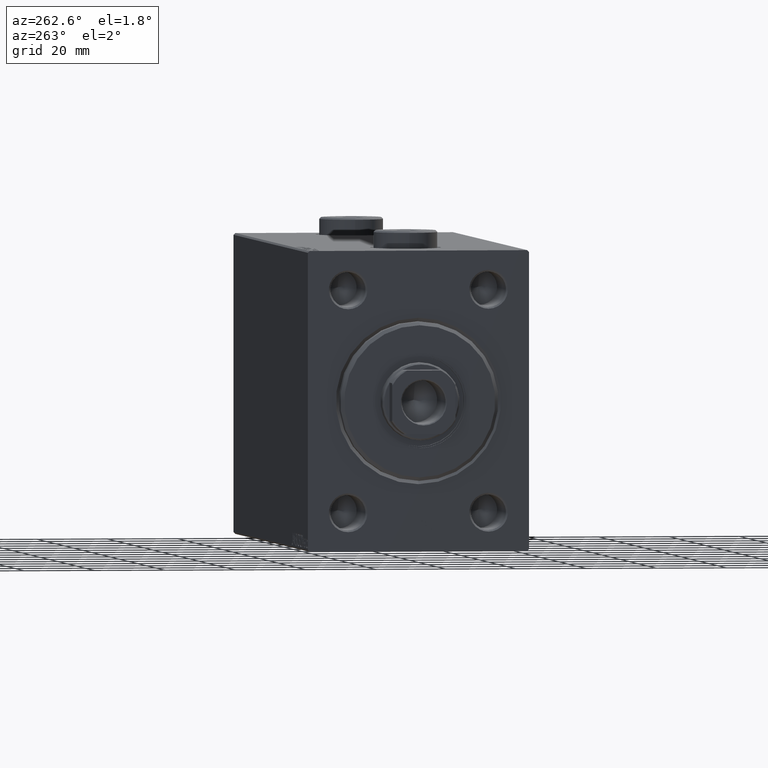
[diagram: clean part render]
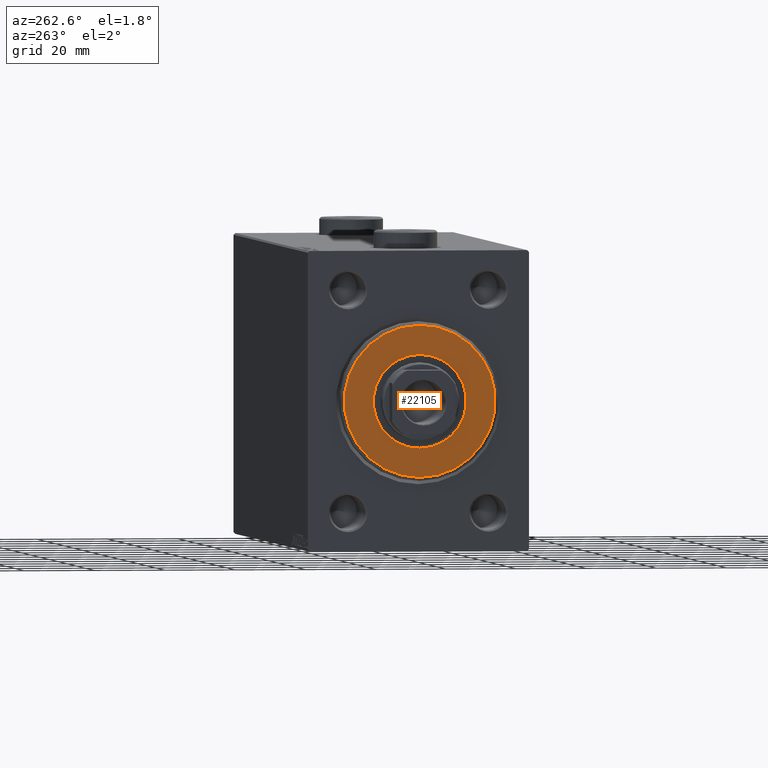
[diagram: same view with one face highlighted and labeled with its STEP entity id]
A machine part, auxiliary view. The second image highlights one B-rep face of the part: STEP entity #22105.
In plain terms, the highlighted planar face has unit normal (-1, 0, 0).
Its self-contained STEP definition (entity closure, byte-faithful):
#352 = DIRECTION ( 'NONE',  ( 1.000000000000000000, -0.000000000000000000, 0.000000000000000000 ) ) ;
#2660 = CARTESIAN_POINT ( 'NONE',  ( 3.000000000000000000, 0.000000000000000000, 0.000000000000000000 ) ) ;
#3381 = CARTESIAN_POINT ( 'NONE',  ( 3.000000000000000000, 0.000000000000000000, 21.50000000000000355 ) ) ;
#4695 = ORIENTED_EDGE ( 'NONE', *, *, #45482, .T. ) ;
#5608 = VERTEX_POINT ( 'NONE', #3381 ) ;
#8035 = CARTESIAN_POINT ( 'NONE',  ( 3.000000000000000000, 0.000000000000000000, 0.000000000000000000 ) ) ;
#8055 = CARTESIAN_POINT ( 'NONE',  ( 3.000000000000000000, 1.622657008870243277E-15, 13.25000000000000178 ) ) ;
#8881 = EDGE_CURVE ( 'NONE', #25439, #25403, #21337, .T. ) ;
#9367 = EDGE_CURVE ( 'NONE', #25403, #25439, #28691, .T. ) ;
#10940 = CARTESIAN_POINT ( 'NONE',  ( 3.000000000000000000, 0.000000000000000000, 0.000000000000000000 ) ) ;
#11206 = AXIS2_PLACEMENT_3D ( 'NONE', #10940, #352, #28941 ) ;
#12110 = FACE_BOUND ( 'NONE', #14314, .T. ) ;
#13709 = DIRECTION ( 'NONE',  ( 0.000000000000000000, 0.000000000000000000, -1.000000000000000000 ) ) ;
#14314 = EDGE_LOOP ( 'NONE', ( #34997, #16228 ) ) ;
#15798 = FACE_OUTER_BOUND ( 'NONE', #26755, .T. ) ;
#16025 = DIRECTION ( 'NONE',  ( 1.000000000000000000, -0.000000000000000000, 0.000000000000000000 ) ) ;
#16228 = ORIENTED_EDGE ( 'NONE', *, *, #9367, .F. ) ;
#19643 = AXIS2_PLACEMENT_3D ( 'NONE', #8035, #33158, #25104 ) ;
#21043 = CARTESIAN_POINT ( 'NONE',  ( 3.000000000000000000, 0.000000000000000000, 0.000000000000000000 ) ) ;
#21337 = CIRCLE ( 'NONE', #45596, 13.25000000000000178 ) ;
#21591 = EDGE_CURVE ( 'NONE', #5608, #42343, #38748, .T. ) ;
#21942 = DIRECTION ( 'NONE',  ( 0.000000000000000000, 0.000000000000000000, -1.000000000000000000 ) ) ;
#22105 = ADVANCED_FACE ( 'NONE', ( #15798, #12110 ), #29647, .T. ) ;
#23525 = AXIS2_PLACEMENT_3D ( 'NONE', #21043, #35085, #21942 ) ;
#25104 = DIRECTION ( 'NONE',  ( 0.000000000000000000, 0.000000000000000000, -1.000000000000000000 ) ) ;
#25403 = VERTEX_POINT ( 'NONE', #8055 ) ;
#25439 = VERTEX_POINT ( 'NONE', #32715 ) ;
#25976 = ORIENTED_EDGE ( 'NONE', *, *, #21591, .T. ) ;
#26180 = DIRECTION ( 'NONE',  ( 0.000000000000000000, 0.000000000000000000, -1.000000000000000000 ) ) ;
#26755 = EDGE_LOOP ( 'NONE', ( #25976, #4695 ) ) ;
#27415 = CARTESIAN_POINT ( 'NONE',  ( 3.000000000000000000, 2.694222958124177598E-15, -21.50000000000000355 ) ) ;
#28691 = CIRCLE ( 'NONE', #23525, 13.25000000000000178 ) ;
#28941 = DIRECTION ( 'NONE',  ( 0.000000000000000000, 0.000000000000000000, -1.000000000000000000 ) ) ;
#29647 = PLANE ( 'NONE',  #35808 ) ;
#31106 = CIRCLE ( 'NONE', #11206, 21.50000000000000355 ) ;
#31236 = DIRECTION ( 'NONE',  ( 1.000000000000000000, 0.000000000000000000, 0.000000000000000000 ) ) ;
#32715 = CARTESIAN_POINT ( 'NONE',  ( 3.000000000000000000, 0.000000000000000000, -13.25000000000000178 ) ) ;
#33158 = DIRECTION ( 'NONE',  ( 1.000000000000000000, -0.000000000000000000, 0.000000000000000000 ) ) ;
#33323 = CARTESIAN_POINT ( 'NONE',  ( 3.000000000000000000, 0.000000000000000000, 0.000000000000000000 ) ) ;
#34997 = ORIENTED_EDGE ( 'NONE', *, *, #8881, .F. ) ;
#35085 = DIRECTION ( 'NONE',  ( 1.000000000000000000, 0.000000000000000000, 0.000000000000000000 ) ) ;
#35808 = AXIS2_PLACEMENT_3D ( 'NONE', #33323, #16025, #26180 ) ;
#38748 = CIRCLE ( 'NONE', #19643, 21.50000000000000355 ) ;
#42343 = VERTEX_POINT ( 'NONE', #27415 ) ;
#45482 = EDGE_CURVE ( 'NONE', #42343, #5608, #31106, .T. ) ;
#45596 = AXIS2_PLACEMENT_3D ( 'NONE', #2660, #31236, #13709 ) ;